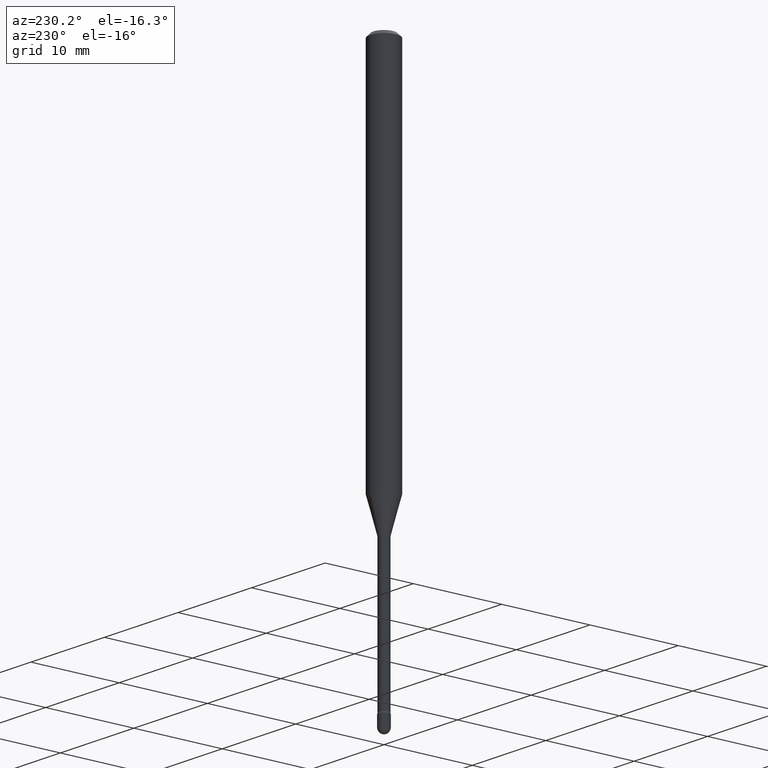
[diagram: clean part render]
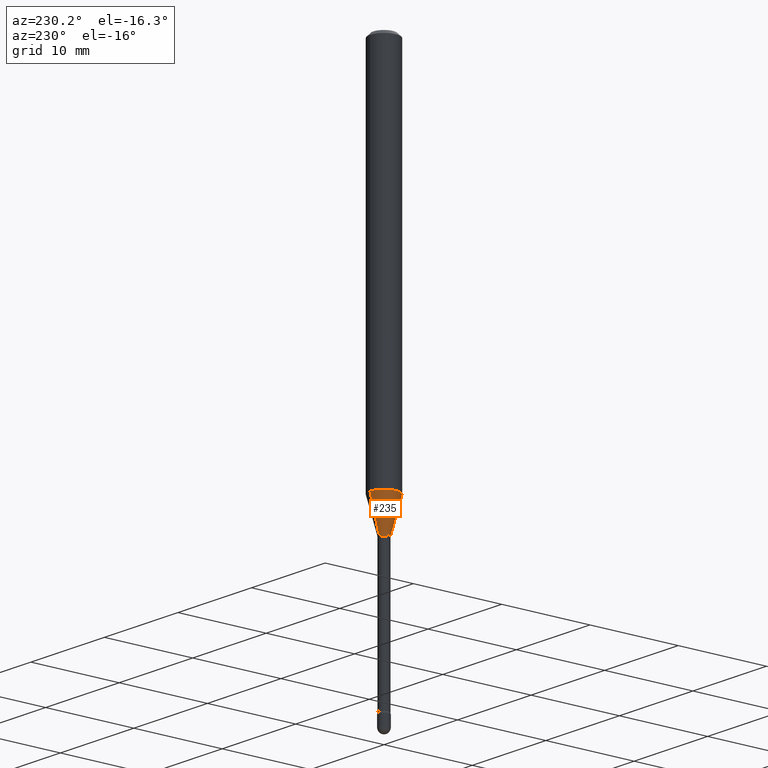
[diagram: same view with one face highlighted and labeled with its STEP entity id]
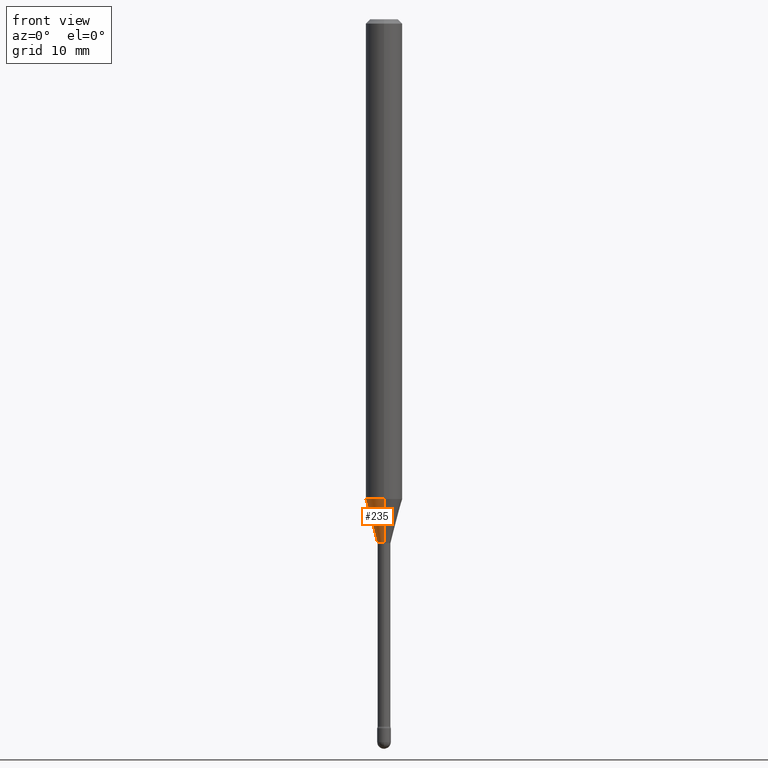
[diagram: same view with one face highlighted and labeled with its STEP entity id]
A machine part, auxiliary view. The second image highlights one B-rep face of the part: STEP entity #235.
A second angle (front view) of the same face is appended — the face is thin or edge-on in the first view.
In plain terms, the highlighted conical surface has half-angle 15 deg.
Its self-contained STEP definition (entity closure, byte-faithful):
#13 = DIRECTION ( 'NONE',  ( -1.807323732225328562E-15, -0.2588190451025179639, 0.9659258262890689783 ) ) ;
#21 = DIRECTION ( 'NONE',  ( 1.839019923739599526E-15, 0.2588190451025248473, 0.9659258262890673130 ) ) ;
#39 = DIRECTION ( 'NONE',  ( -6.982962677686265922E-15, -1.000000000000000000, 4.370956789862821150E-15 ) ) ;
#52 = EDGE_CURVE ( 'NONE', #97, #236, #522, .T. ) ;
#88 = ORIENTED_EDGE ( 'NONE', *, *, #113, .F. ) ;
#94 = CARTESIAN_POINT ( 'NONE',  ( 3.023754139721142721E-16, 0.02261111260565773148, -1.793092501787273196 ) ) ;
#97 = VERTEX_POINT ( 'NONE', #406 ) ;
#103 = VERTEX_POINT ( 'NONE', #187 ) ;
#113 = EDGE_CURVE ( 'NONE', #525, #103, #281, .T. ) ;
#120 = VECTOR ( 'NONE', #13, 39.37007874015749564 ) ;
#126 = CARTESIAN_POINT ( 'NONE',  ( 4.384924639673054257E-29, -6.260587874909283975E-15, -1.793092501787273196 ) ) ;
#131 = CARTESIAN_POINT ( 'NONE',  ( 4.384924639673054257E-29, -6.260587874909283975E-15, -1.793092501787273196 ) ) ;
#167 = DIRECTION ( 'NONE',  ( -6.982962677686265922E-15, -1.000000000000000000, 0.000000000000000000 ) ) ;
#187 = CARTESIAN_POINT ( 'NONE',  ( 4.440892098501025523E-16, 0.06249999999999423378, -1.644225147374218210 ) ) ;
#235 = ADVANCED_FACE ( 'NONE', ( #471 ), #371, .T. ) ;
#236 = VERTEX_POINT ( 'NONE', #473 ) ;
#252 = AXIS2_PLACEMENT_3D ( 'NONE', #433, #472, #39 ) ;
#265 = AXIS2_PLACEMENT_3D ( 'NONE', #126, #510, #167 ) ;
#281 = LINE ( 'NONE', #369, #523 ) ;
#295 = AXIS2_PLACEMENT_3D ( 'NONE', #131, #387, #563 ) ;
#321 = ORIENTED_EDGE ( 'NONE', *, *, #52, .T. ) ;
#330 = CIRCLE ( 'NONE', #295, 0.02261111260566398690 ) ;
#369 = CARTESIAN_POINT ( 'NONE',  ( 1.606616180941255974E-16, 0.02261111260565772454, -1.793092501787273196 ) ) ;
#371 = CONICAL_SURFACE ( 'NONE', #265, 0.02261111260566398690, 0.2617993877991501295 ) ;
#387 = DIRECTION ( 'NONE',  ( -2.445453670294399480E-29, 3.491503014300162329E-15, 1.000000000000000000 ) ) ;
#388 = ORIENTED_EDGE ( 'NONE', *, *, #470, .F. ) ;
#403 = CARTESIAN_POINT ( 'NONE',  ( -1.578925554262692203E-16, -0.02261111260567024925, -1.793092501787273196 ) ) ;
#406 = CARTESIAN_POINT ( 'NONE',  ( -1.578925554262692203E-16, -0.02261111260567024925, -1.793092501787273196 ) ) ;
#433 = CARTESIAN_POINT ( 'NONE',  ( 4.020876421436631309E-29, -5.740817058245210280E-15, -1.644225147374217988 ) ) ;
#441 = ORIENTED_EDGE ( 'NONE', *, *, #476, .T. ) ;
#470 = EDGE_CURVE ( 'NONE', #103, #236, #512, .T. ) ;
#471 = FACE_OUTER_BOUND ( 'NONE', #566, .T. ) ;
#472 = DIRECTION ( 'NONE',  ( -2.445453670294399480E-29, 3.491503014300162329E-15, 1.000000000000000000 ) ) ;
#473 = CARTESIAN_POINT ( 'NONE',  ( -4.364351673553515854E-16, -0.06250000000000575928, -1.644225147374217544 ) ) ;
#476 = EDGE_CURVE ( 'NONE', #525, #97, #330, .T. ) ;
#510 = DIRECTION ( 'NONE',  ( -2.445453670294399480E-29, 3.491503014300162329E-15, 1.000000000000000000 ) ) ;
#512 = CIRCLE ( 'NONE', #252, 0.06250000000000000000 ) ;
#522 = LINE ( 'NONE', #403, #120 ) ;
#523 = VECTOR ( 'NONE', #21, 39.37007874015747433 ) ;
#525 = VERTEX_POINT ( 'NONE', #94 ) ;
#563 = DIRECTION ( 'NONE',  ( -6.982962677686265922E-15, -1.000000000000000000, 0.000000000000000000 ) ) ;
#566 = EDGE_LOOP ( 'NONE', ( #88, #441, #321, #388 ) ) ;